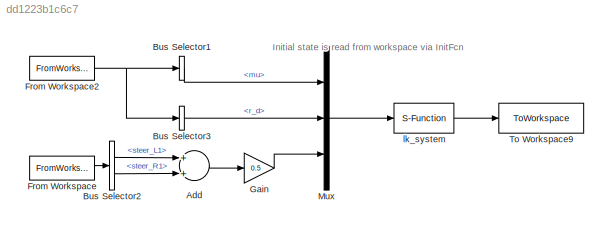
MODEL slx_dd1223b1c6c7
KIND model
CONFIG AbsTol = auto
CONFIG EnableMultiTasking = off
CONFIG FixedStep = auto
CONFIG InitFcn = set_param("carsim_experiment_validate/lk_system", ...\n"Parameters",...\n"[lk_acc_state.y.Data(1); lk_acc_state.nu.Data(1); lk_acc_state.dPsi.Data(1); lk_acc_state.r.Data(1)]")
CONFIG MaxStep = auto
CONFIG MinStep = auto
CONFIG RelTol = 1e-3
CONFIG SampleTimeConstraint = Unconstrained
CONFIG Solver = VariableStepAuto
CONFIG SolverName = VariableStepAuto
CONFIG StartTime = 0.0
CONFIG StopTime = 200
BLOCK [Sum] Add
  InputSameDT = off
  OutDataTypeStr = Inherit: Inherit via internal rule
  Ports = [2, 1]
  SaturateOnIntegerOverflow = off
BLOCK [BusSelector] Bus Selector1
  OutputAsBus = off
  OutputSignals = mu
  Ports = [1, 1]
BLOCK [BusSelector] Bus Selector2
  OutputAsBus = off
  OutputSignals = steer_L1,steer_R1
  Ports = [1, 2]
BLOCK [BusSelector] Bus Selector3
  OutputAsBus = off
  OutputSignals = r_d
  Ports = [1, 1]
BLOCK [FromWorkspace] From Workspace
  OutDataTypeStr = Bus: DataBus
  SampleTime = 0
  VariableName = rawdata
  ZeroCross = on
BLOCK [FromWorkspace] From Workspace2
  OutDataTypeStr = Bus: LKACCBus
  SampleTime = 0
  VariableName = lk_acc_state
  ZeroCross = on
BLOCK [Gain] Gain
  Gain = 0.5
  OutDataTypeStr = Inherit: Inherit via internal rule
  ParamDataTypeStr = Inherit: Inherit via internal rule
  SaturateOnIntegerOverflow = off
BLOCK [Mux] Mux
  DisplayOption = bar
  Inputs = 3
  Ports = [3, 1]
BLOCK [ToWorkspace] To Workspace9
  FixptAsFi = on
  MaxDataPoints = inf
  Ports = [1]
  SampleTime = -1
  Save2DSignal = 3-D array (concatenate along third dimension)
  SaveFormat = Timeseries
  VariableName = data_lk_validate
BLOCK [S-Function] lk_system
  EnableBusSupport = off
  FunctionName = lk_system
  Parameters = [lk_acc_state.y.Data(1); lk_acc_state.nu.Data(1); lk_acc_state.dPsi.Data(1); lk_acc_state.r.Data(1)]
  Ports = [1, 1]
  SFcnIsStateOwnerBlock = off
  SFunctionDeploymentMode = off
ANNOTATION (root): Initial state is read from workspace via InitFcn
LINE Add:1 -> Gain:1
LINE Bus Selector1:1 -> Mux:1
LINE Bus Selector2:1 -> Add:1
LINE Bus Selector2:2 -> Add:2
LINE Bus Selector3:1 -> Mux:2
NET From Workspace2:1 -> Bus Selector1:1, Bus Selector3:1
LINE From Workspace:1 -> Bus Selector2:1
LINE Gain:1 -> Mux:3
LINE Mux:1 -> lk_system:1
LINE lk_system:1 -> To Workspace9:1
note: NET lines group one-source signal fan-out (src -> all destinations, sorted); 1:1 wires keep LINE
